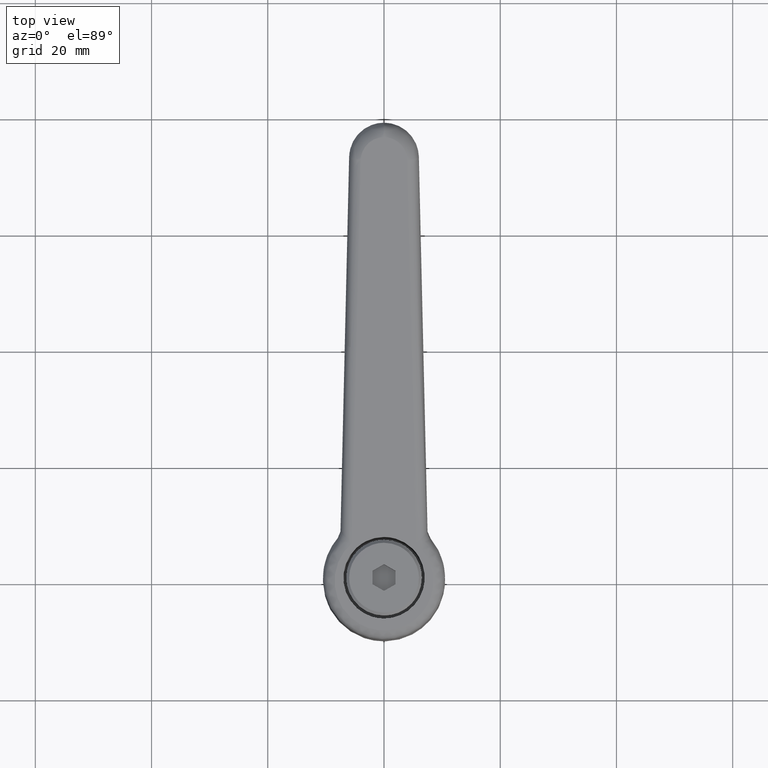
[diagram: clean part render]
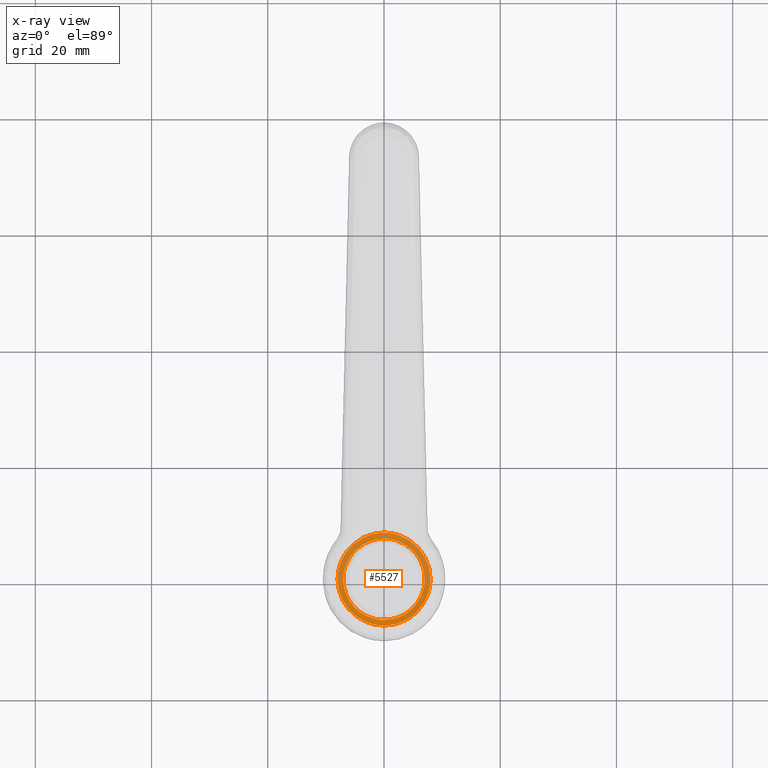
[diagram: x-ray — body ghosted, one internal face saturated and labeled with its STEP entity id]
A machine part, top view, then the same camera in x-ray: the body is ghosted and one INTERNAL B-rep face — a face not visible from any outside direction — is saturated and labeled: STEP entity #5527.
In plain terms, the highlighted face is a freeform B-spline surface patch.
Its self-contained STEP definition (entity closure, byte-faithful):
#1770=CARTESIAN_POINT('',(-8.0,0.0,12.000000000000220));
#1771=VERTEX_POINT('',#1770);
#1772=CARTESIAN_POINT('',(-5.579455816952608,-5.733207593848199,11.999999999999829));
#1773=VERTEX_POINT('',#1772);
#1774=CARTESIAN_POINT('',(-8.0,0.0,12.000000000000220));
#1775=CARTESIAN_POINT('',(-8.000346777186421,-0.799035140969019,12.000000000000160));
#1776=CARTESIAN_POINT('',(-7.813910058390462,-2.030578451057490,12.000000000000069));
#1777=CARTESIAN_POINT('',(-7.230316332735756,-3.487952034362461,11.999999999999989));
#1778=CARTESIAN_POINT('',(-6.562369465494196,-4.642961034772857,11.999999999999959));
#1779=CARTESIAN_POINT('',(-5.985119383544394,-5.338558675160188,11.999999999999821));
#1780=CARTESIAN_POINT('',(-5.579455816952608,-5.733207593848199,11.999999999999829));
#1781=B_SPLINE_CURVE_WITH_KNOTS('',3,(#1774,#1775,#1776,#1777,#1778,#1779,#1780),.UNSPECIFIED.,.F.,.U.,(4,1,1,1,4),(0.000000016647855,2.396981587508846,3.695332281701950,4.694087137757164,6.391949000580503),.UNSPECIFIED.);
#1782=EDGE_CURVE('',#1771,#1773,#1781,.T.);
#1849=CARTESIAN_POINT('',(5.404721820807389,-5.898218841334017,12.000000000001609));
#1850=VERTEX_POINT('',#1849);
#1856=CARTESIAN_POINT('',(8.0,0.0,12.000000000000220));
#1857=VERTEX_POINT('',#1856);
#1858=CARTESIAN_POINT('',(5.404721820807389,-5.898218841334017,12.000000000001609));
#1859=CARTESIAN_POINT('',(5.684871861981707,-5.641520766126859,12.000000000001570));
#1860=CARTESIAN_POINT('',(6.279945774798549,-5.012665480820535,12.000000000001400));
#1861=CARTESIAN_POINT('',(7.078085791434819,-3.835675937667725,12.000000000001121));
#1862=CARTESIAN_POINT('',(7.797608681573932,-2.141485736302264,12.000000000000741));
#1863=CARTESIAN_POINT('',(8.000355300686103,-0.794531051940420,12.000000000000410));
#1864=CARTESIAN_POINT('',(8.0,0.0,12.000000000000220));
#1865=B_SPLINE_CURVE_WITH_KNOTS('',3,(#1858,#1859,#1860,#1861,#1862,#1863,#1864),.UNSPECIFIED.,.F.,.U.,(4,1,1,1,4),(0.000000015297009,1.139925668030960,2.590752214755742,4.248810439503933,6.632297595052825),.UNSPECIFIED.);
#1866=EDGE_CURVE('',#1850,#1857,#1865,.T.);
#1868=CARTESIAN_POINT('',(-0.000000868449344,7.999999999999953,12.000000000000220));
#1869=VERTEX_POINT('',#1868);
#1870=CARTESIAN_POINT('',(8.0,0.0,12.000000000000220));
#1871=CARTESIAN_POINT('',(8.000003575835006,0.392689313944158,12.000000000000229));
#1872=CARTESIAN_POINT('',(7.930061321806347,1.341731562466229,12.000000000000201));
#1873=CARTESIAN_POINT('',(7.594239527841137,2.648277277126235,12.000000000000229));
#1874=CARTESIAN_POINT('',(6.979311148218747,3.990799130108433,12.000000000000220));
#1875=CARTESIAN_POINT('',(6.197998865635191,5.129622555827458,12.000000000000190));
#1876=CARTESIAN_POINT('',(5.152835849070217,6.174756547123894,12.000000000000311));
#1877=CARTESIAN_POINT('',(3.965528759600894,7.000145487148257,12.000000000000281));
#1878=CARTESIAN_POINT('',(2.767021839547984,7.540170653029652,12.000000000000179));
#1879=CARTESIAN_POINT('',(1.439855569828352,7.907437338190689,12.000000000000171));
#1880=CARTESIAN_POINT('',(0.556326836882048,8.000094420941045,12.000000000000160));
#1881=CARTESIAN_POINT('',(-0.000000868449344,7.999999999999953,12.000000000000220));
#1882=B_SPLINE_CURVE_WITH_KNOTS('',3,(#1870,#1871,#1872,#1873,#1874,#1875,#1876,#1877,#1878,#1879,#1880,#1881),.UNSPECIFIED.,.F.,.U.,(4,1,1,1,1,1,1,1,1,4),(0.000000056826481,1.178085974386301,2.847083774229223,4.025192415684765,5.596013938215826,6.970439222590996,8.443083078071883,9.915719243945979,10.897483395204510,12.566449952477610),.UNSPECIFIED.);
#1883=EDGE_CURVE('',#1857,#1869,#1882,.T.);
#1885=CARTESIAN_POINT('',(-0.000000868449344,7.999999999999953,12.000000000000220));
#1886=CARTESIAN_POINT('',(-0.752694953559315,8.000288353415128,12.000000000000201));
#1887=CARTESIAN_POINT('',(-2.094272928920655,7.809211130054315,12.000000000000220));
#1888=CARTESIAN_POINT('',(-3.615188438841043,7.179180876482187,12.000000000000229));
#1889=CARTESIAN_POINT('',(-4.671442950329409,6.519240348964334,12.000000000000210));
#1890=CARTESIAN_POINT('',(-5.563317370211847,5.796467284161614,12.000000000000270));
#1891=CARTESIAN_POINT('',(-6.549802465103105,4.694690385705957,12.000000000000190));
#1892=CARTESIAN_POINT('',(-7.370606502230897,3.266341576913233,12.000000000000229));
#1893=CARTESIAN_POINT('',(-7.886878136813222,1.636207316886783,12.000000000000229));
#1894=CARTESIAN_POINT('',(-8.000088965492411,0.556325907579281,12.000000000000240));
#1895=CARTESIAN_POINT('',(-8.0,0.0,12.000000000000220));
#1896=B_SPLINE_CURVE_WITH_KNOTS('',3,(#1885,#1886,#1887,#1888,#1889,#1890,#1891,#1892,#1893,#1894,#1895),.UNSPECIFIED.,.F.,.U.,(4,1,1,1,1,1,1,1,4),(0.000000057124993,2.258023517687645,4.025192102482910,4.908785831861637,5.988730277201579,7.461304113736728,9.326660035415404,10.897482546400269,12.566448973526660),.UNSPECIFIED.);
#1897=EDGE_CURVE('',#1869,#1771,#1896,.T.);
#1916=CARTESIAN_POINT('',(0.000000868449518,-7.999999999999953,12.000000000000220));
#1917=VERTEX_POINT('',#1916);
#1918=CARTESIAN_POINT('',(-5.579455816952608,-5.733207593848199,11.999999999999829));
#1919=CARTESIAN_POINT('',(-5.141644583437599,-6.159433008630646,11.999999999999851));
#1920=CARTESIAN_POINT('',(-4.142102092934586,-6.930585103436113,11.999999999999940));
#1921=CARTESIAN_POINT('',(-2.250957834873197,-7.780008025310890,12.000000000000041));
#1922=CARTESIAN_POINT('',(-0.803994636168782,-8.000366795983320,12.000000000000201));
#1923=CARTESIAN_POINT('',(0.000000868449518,-7.999999999999953,12.000000000000220));
#1924=B_SPLINE_CURVE_WITH_KNOTS('',3,(#1918,#1919,#1920,#1921,#1922,#1923),.UNSPECIFIED.,.F.,.U.,(4,1,1,4),(0.000000017542925,1.833055466792414,3.762583366781316,6.174501231152134),.UNSPECIFIED.);
#1925=EDGE_CURVE('',#1773,#1917,#1924,.T.);
#1927=CARTESIAN_POINT('',(0.000000868449518,-7.999999999999953,12.000000000000220));
#1928=CARTESIAN_POINT('',(0.525418882769837,-8.000055163655974,12.000000000000361));
#1929=CARTESIAN_POINT('',(1.483520706227075,-7.905282648808512,12.000000000000600));
#1930=CARTESIAN_POINT('',(2.705988252241428,-7.556141116362206,12.000000000000920));
#1931=CARTESIAN_POINT('',(4.036257945276780,-6.966530589319981,12.000000000001229));
#1932=CARTESIAN_POINT('',(4.880767436614853,-6.378678934081892,12.000000000001521));
#1933=CARTESIAN_POINT('',(5.404721820807389,-5.898218841334017,12.000000000001609));
#1934=B_SPLINE_CURVE_WITH_KNOTS('',3,(#1927,#1928,#1929,#1930,#1931,#1932,#1933),.UNSPECIFIED.,.F.,.U.,(4,1,1,1,4),(0.000000017501845,1.576259658888568,2.874365541011635,3.801558917198936,5.934151899245332),.UNSPECIFIED.);
#1935=EDGE_CURVE('',#1917,#1850,#1934,.T.);
#1989=CARTESIAN_POINT('',(0.000000934546246,-6.999999999999938,12.000000000000220));
#1990=VERTEX_POINT('',#1989);
#1991=CARTESIAN_POINT('',(5.016556972946036,-4.882024109617867,12.000000000000220));
#1992=VERTEX_POINT('',#1991);
#1993=CARTESIAN_POINT('',(0.000000934546246,-6.999999999999938,12.000000000000220));
#1994=CARTESIAN_POINT('',(0.611751534728028,-7.000200630086997,12.000000000000229));
#1995=CARTESIAN_POINT('',(1.514671277019072,-6.880843347430841,12.000000000000201));
#1996=CARTESIAN_POINT('',(2.648813839081460,-6.499132985127456,12.000000000000229));
#1997=CARTESIAN_POINT('',(3.779262552184704,-5.953968976298874,12.000000000000190));
#1998=CARTESIAN_POINT('',(4.549470172928987,-5.362408435455647,12.000000000000250));
#1999=CARTESIAN_POINT('',(5.016556972946036,-4.882024109617867,12.000000000000220));
#2000=B_SPLINE_CURVE_WITH_KNOTS('',3,(#1993,#1994,#1995,#1996,#1997,#1998,#1999),.UNSPECIFIED.,.F.,.U.,(4,1,1,1,4),(0.000000022130036,1.835189613498757,2.709099079928639,3.582978723452461,5.592954645758491),.UNSPECIFIED.);
#2001=EDGE_CURVE('',#1990,#1992,#2000,.T.);
#2003=CARTESIAN_POINT('',(-7.0,0.0,12.000000000000220));
#2004=VERTEX_POINT('',#2003);
#2005=CARTESIAN_POINT('',(-7.0,0.0,12.000000000000220));
#2006=CARTESIAN_POINT('',(-7.000138064126716,-0.572698665521365,12.000000000000210));
#2007=CARTESIAN_POINT('',(-6.858668735864478,-1.718000959546780,12.000000000000229));
#2008=CARTESIAN_POINT('',(-6.246179927696288,-3.306196908121212,12.000000000000240));
#2009=CARTESIAN_POINT('',(-5.373935695223921,-4.560721129943484,12.000000000000179));
#2010=CARTESIAN_POINT('',(-4.416405142623050,-5.472291499545416,12.000000000000229));
#2011=CARTESIAN_POINT('',(-3.560101193257477,-6.052051969141342,12.000000000000220));
#2012=CARTESIAN_POINT('',(-2.532332004936762,-6.561597863771000,12.000000000000229));
#2013=CARTESIAN_POINT('',(-1.374453482125449,-6.912818989722603,12.000000000000179));
#2014=CARTESIAN_POINT('',(-0.429509227411419,-7.000030809486261,12.000000000000369));
#2015=CARTESIAN_POINT('',(0.000000934546246,-6.999999999999938,12.000000000000220));
#2016=B_SPLINE_CURVE_WITH_KNOTS('',3,(#2005,#2006,#2007,#2008,#2009,#2010,#2011,#2012,#2013,#2014,#2015),.UNSPECIFIED.,.F.,.U.,(4,1,1,1,1,1,1,1,4),(0.000000079000884,1.718067331045196,3.436146432716774,5.068313868230859,6.270929288900597,7.387685695255509,8.160828122917430,9.707098287289153,10.995643806857140),.UNSPECIFIED.);
#2017=EDGE_CURVE('',#2004,#1990,#2016,.T.);
#2019=CARTESIAN_POINT('',(-0.000000934546180,6.999999999999938,12.000000000000220));
#2020=VERTEX_POINT('',#2019);
#2021=CARTESIAN_POINT('',(-0.000000934546180,6.999999999999938,12.000000000000220));
#2022=CARTESIAN_POINT('',(-0.544058273283114,7.000114659488525,12.000000000000220));
#2023=CARTESIAN_POINT('',(-1.517572829753010,6.885912888058216,12.000000000000201));
#2024=CARTESIAN_POINT('',(-2.825507769124593,6.444903196627843,12.000000000000259));
#2025=CARTESIAN_POINT('',(-3.882998011503200,5.862832368105620,12.000000000000171));
#2026=CARTESIAN_POINT('',(-4.897197147398207,5.061359640703407,12.000000000000201));
#2027=CARTESIAN_POINT('',(-5.781631612665882,4.036086885255780,12.000000000000330));
#2028=CARTESIAN_POINT('',(-6.503046274923547,2.725313718885074,12.000000000000149));
#2029=CARTESIAN_POINT('',(-6.912829764826461,1.374453414461439,12.000000000000210));
#2030=CARTESIAN_POINT('',(-7.000028597973205,0.429510385568532,12.000000000000240));
#2031=CARTESIAN_POINT('',(-7.0,0.0,12.000000000000220));
#2032=B_SPLINE_CURVE_WITH_KNOTS('',3,(#2021,#2022,#2023,#2024,#2025,#2026,#2027,#2028,#2029,#2030,#2031),.UNSPECIFIED.,.F.,.U.,(4,1,1,1,1,1,1,1,4),(0.000000079331761,1.632156273975930,2.920718073546907,4.123373811635938,5.240146531855570,6.786366809140236,8.160827340968375,9.707097356896705,10.995642753399119),.UNSPECIFIED.);
#2033=EDGE_CURVE('',#2020,#2004,#2032,.T.);
#2035=CARTESIAN_POINT('',(5.160941138498927,4.729131347983953,12.000000000000220));
#2036=VERTEX_POINT('',#2035);
#2037=CARTESIAN_POINT('',(5.160941138498927,4.729131347983953,12.000000000000220));
#2038=CARTESIAN_POINT('',(4.732277637665152,5.197280304928949,12.000000000000190));
#2039=CARTESIAN_POINT('',(3.910652684324577,5.879055913175705,12.000000000000300));
#2040=CARTESIAN_POINT('',(2.636508116942129,6.520368482245877,12.000000000000121));
#2041=CARTESIAN_POINT('',(1.390320046507839,6.903027492758169,12.000000000000320));
#2042=CARTESIAN_POINT('',(0.513835058230831,7.000091148514886,12.000000000000179));
#2043=CARTESIAN_POINT('',(-0.000000934546180,6.999999999999938,12.000000000000220));
#2044=B_SPLINE_CURVE_WITH_KNOTS('',3,(#2037,#2038,#2039,#2040,#2041,#2042,#2043),.UNSPECIFIED.,.F.,.U.,(4,1,1,1,4),(0.000000021856422,1.904200495782994,3.173641204556775,4.261768509269020,5.803261101225724),.UNSPECIFIED.);
#2045=EDGE_CURVE('',#2036,#2020,#2044,.T.);
#2110=CARTESIAN_POINT('',(7.0,0.0,12.000000000000220));
#2111=VERTEX_POINT('',#2110);
#2112=CARTESIAN_POINT('',(5.016556972946036,-4.882024109617867,12.000000000000220));
#2113=CARTESIAN_POINT('',(5.468112178112933,-4.418351977373843,12.000000000000220));
#2114=CARTESIAN_POINT('',(6.089743072193559,-3.570719582797385,12.000000000000201));
#2115=CARTESIAN_POINT('',(6.607472904661822,-2.379331442467049,12.000000000000229));
#2116=CARTESIAN_POINT('',(6.917149460166262,-1.266211074849015,12.000000000000220));
#2117=CARTESIAN_POINT('',(7.000100174626295,-0.506510845806173,12.000000000000229));
#2118=CARTESIAN_POINT('',(7.0,0.0,12.000000000000220));
#2119=B_SPLINE_CURVE_WITH_KNOTS('',3,(#2112,#2113,#2114,#2115,#2116,#2117,#2118),.UNSPECIFIED.,.F.,.U.,(4,1,1,1,4),(0.000000022187382,1.941592456910536,3.123424765296230,3.883181302102703,5.402687945118024),.UNSPECIFIED.);
#2120=EDGE_CURVE('',#1992,#2111,#2119,.T.);
#2152=CARTESIAN_POINT('',(7.0,0.0,12.000000000000220));
#2153=CARTESIAN_POINT('',(7.000025182742529,0.378609659981161,12.000000000000201));
#2154=CARTESIAN_POINT('',(6.936227270086432,1.162868640716900,12.000000000000250));
#2155=CARTESIAN_POINT('',(6.641693636331152,2.320402231230030,12.000000000000190));
#2156=CARTESIAN_POINT('',(6.084470087649269,3.558043361382896,12.000000000000281));
#2157=CARTESIAN_POINT('',(5.526445756978062,4.330435285663516,12.000000000000171));
#2158=CARTESIAN_POINT('',(5.160941138498927,4.729131347983953,12.000000000000220));
#2159=B_SPLINE_CURVE_WITH_KNOTS('',3,(#2152,#2153,#2154,#2155,#2156,#2157,#2158),.UNSPECIFIED.,.F.,.U.,(4,1,1,1,4),(0.000000021365802,1.135831473793882,2.352810694761030,3.569763554516944,5.192383569318831),.UNSPECIFIED.);
#2160=EDGE_CURVE('',#2111,#2036,#2159,.T.);
#5506=CARTESIAN_POINT('',(-8.799199968988896,8.799199968988843,12.000000000000201));
#5507=CARTESIAN_POINT('',(8.799200398142338,8.799199968988843,12.000000000000201));
#5508=CARTESIAN_POINT('',(-8.799199968988896,-8.799200398142286,12.000000000000201));
#5509=CARTESIAN_POINT('',(8.799200398142338,-8.799200398142286,12.000000000000201));
#5510=B_SPLINE_SURFACE_WITH_KNOTS('',1,1,((#5506,#5508),(#5507,#5509)),.UNSPECIFIED.,.F.,.F.,.U.,(2,2),(2,2),(0.0,17.598400367131230),(0.0,17.598400367131131),.UNSPECIFIED.);
#5511=ORIENTED_EDGE('',*,*,#1897,.F.);
#5512=ORIENTED_EDGE('',*,*,#1883,.F.);
#5513=ORIENTED_EDGE('',*,*,#1866,.F.);
#5514=ORIENTED_EDGE('',*,*,#1935,.F.);
#5515=ORIENTED_EDGE('',*,*,#1925,.F.);
#5516=ORIENTED_EDGE('',*,*,#1782,.F.);
#5517=EDGE_LOOP('',(#5511,#5512,#5513,#5514,#5515,#5516));
#5518=FACE_OUTER_BOUND('',#5517,.T.);
#5519=ORIENTED_EDGE('',*,*,#2017,.T.);
#5520=ORIENTED_EDGE('',*,*,#2001,.T.);
#5521=ORIENTED_EDGE('',*,*,#2120,.T.);
#5522=ORIENTED_EDGE('',*,*,#2160,.T.);
#5523=ORIENTED_EDGE('',*,*,#2045,.T.);
#5524=ORIENTED_EDGE('',*,*,#2033,.T.);
#5525=EDGE_LOOP('',(#5519,#5520,#5521,#5522,#5523,#5524));
#5526=FACE_BOUND('',#5525,.T.);
#5527=ADVANCED_FACE('',(#5518,#5526),#5510,.T.);